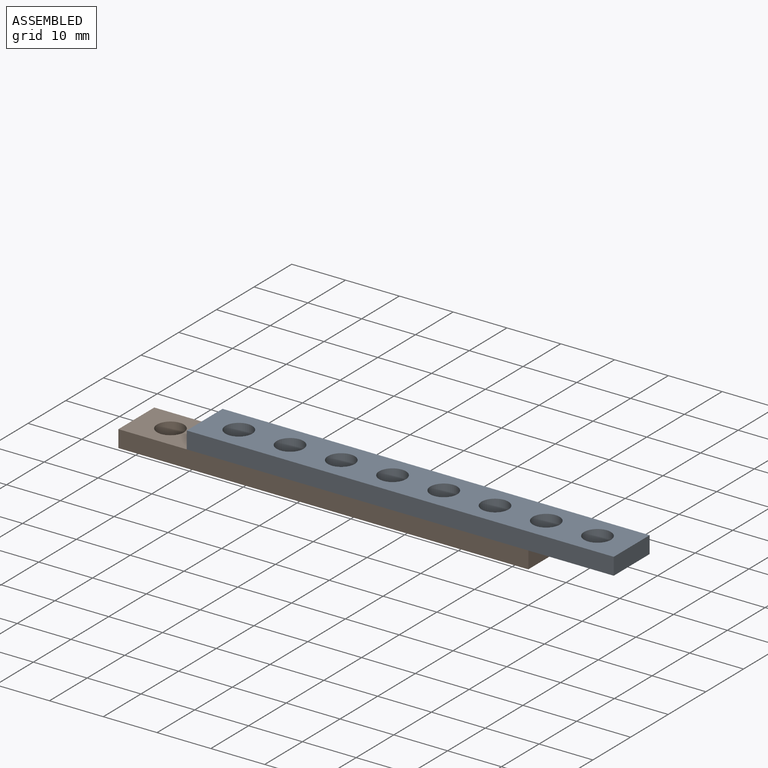
[diagram: assembled view]
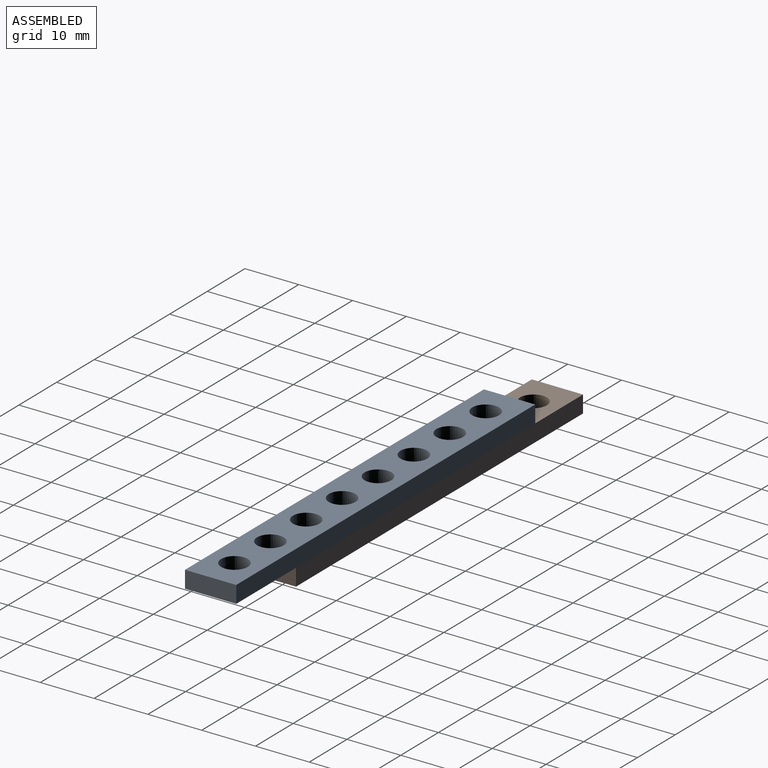
[diagram: assembled view, second angle]
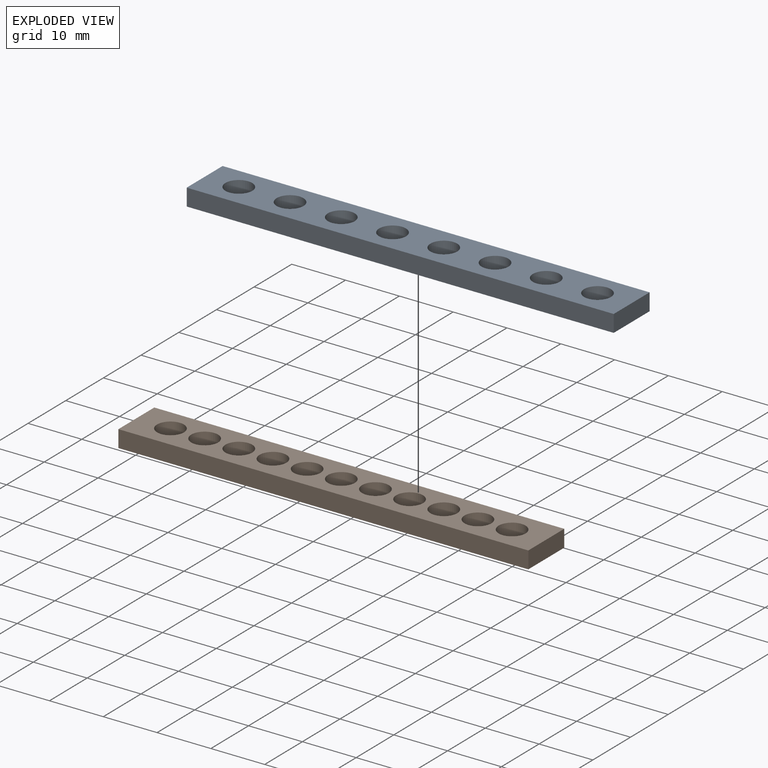
[diagram: exploded view]
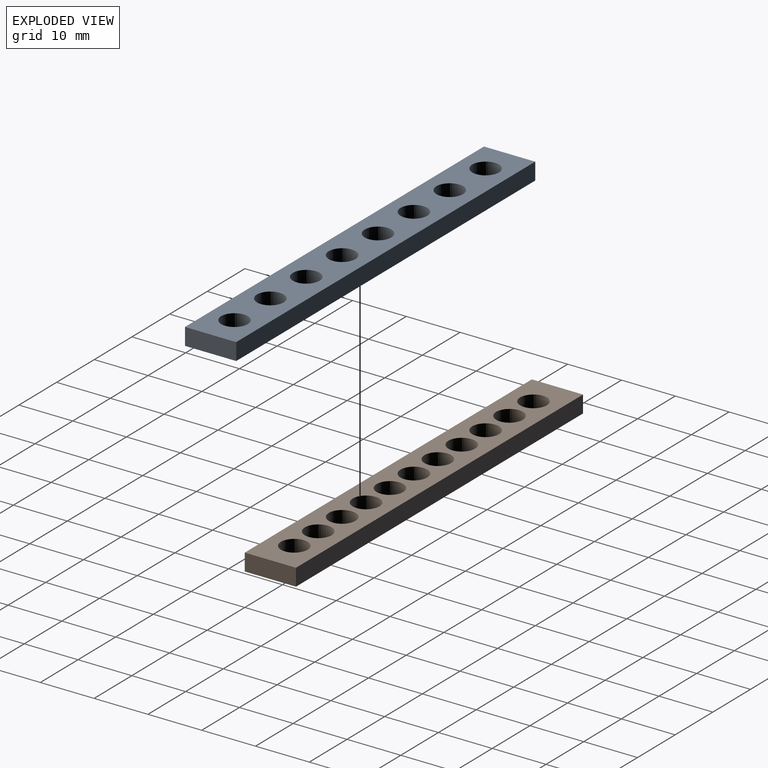
[diagram: exploded view, second angle]
ASSEMBLY  parts=2 mates=2
PART A: 14 faces, bbox 79.4x9.5x3.2 mm
  f0: plane 79.38x3.18mm, normal (0,-1,0), area 252mm2, adj f1,f11,f12,f13
  f1: plane 9.53x3.18mm, normal (1,0,0), area 30.2mm2, adj f0,f2,f12,f13
  f2: plane 79.38x3.18mm, normal (0,1,0), area 252mm2, adj f1,f11,f12,f13
  f3: cylinder r=2.49mm len=4.98mm, axis (0,0,-1), area 49.7mm2, adj f12,f13
  f4: cylinder r=2.49mm len=4.98mm, axis (0,0,-1), area 49.7mm2, adj f12,f13
  f5: cylinder r=2.49mm len=4.98mm, axis (0,0,-1), area 49.7mm2, adj f12,f13
  f6: cylinder r=2.49mm len=4.98mm, axis (0,0,-1), area 49.7mm2, adj f12,f13
  f7: cylinder r=2.49mm len=4.98mm, axis (0,0,-1), area 49.7mm2, adj f12,f13
  f8: cylinder r=2.49mm len=4.98mm, axis (0,0,-1), area 49.7mm2, adj f12,f13
  f9: cylinder r=2.49mm len=4.98mm, axis (0,0,-1), area 49.7mm2, adj f12,f13
  f10: cylinder r=2.49mm len=4.98mm, axis (0,0,-1), area 49.7mm2, adj f12,f13
  f11: plane 9.53x3.18mm, normal (-1,0,0), area 30.2mm2, adj f0,f2,f12,f13
  f12: plane 79.38x9.53mm, normal (0,0,1), area 600.3mm2, adj f0,f1,f2,f3,f4,f5,f6,f7
  f13: plane 79.38x9.53mm, normal (0,0,-1), area 600.3mm2, adj f0,f1,f2,f3,f4,f5,f6,f7
PART B: 17 faces, bbox 76.2x9.5x3.2 mm
  f0: plane 76.2x3.18mm, normal (0,-1,0), area 241.9mm2, adj f1,f14,f15,f16
  f1: plane 9.53x3.18mm, normal (1,0,0), area 30.2mm2, adj f0,f2,f15,f16
  f2: plane 76.2x3.18mm, normal (0,1,0), area 241.9mm2, adj f1,f14,f15,f16
  f3: cylinder r=2.49mm len=4.98mm, axis (0,0,-1), area 49.7mm2, adj f15,f16
  f4: cylinder r=2.49mm len=4.98mm, axis (0,0,-1), area 49.7mm2, adj f15,f16
  f5: cylinder r=2.49mm len=4.98mm, axis (0,0,-1), area 49.7mm2, adj f15,f16
  f6: cylinder r=2.49mm len=4.98mm, axis (0,0,-1), area 49.7mm2, adj f15,f16
  f7: cylinder r=2.49mm len=4.98mm, axis (0,0,-1), area 49.7mm2, adj f15,f16
  f8: cylinder r=2.49mm len=4.98mm, axis (0,0,-1), area 49.7mm2, adj f15,f16
  f9: cylinder r=2.49mm len=4.98mm, axis (0,0,-1), area 49.7mm2, adj f15,f16
  f10: cylinder r=2.49mm len=4.98mm, axis (0,0,-1), area 49.7mm2, adj f15,f16
  f11: cylinder r=2.49mm len=4.98mm, axis (0,0,-1), area 49.7mm2, adj f15,f16
  f12: cylinder r=2.49mm len=4.98mm, axis (0,0,-1), area 49.7mm2, adj f15,f16
  f13: cylinder r=2.49mm len=4.98mm, axis (0,0,-1), area 49.7mm2, adj f15,f16
  f14: plane 9.53x3.18mm, normal (-1,0,0), area 30.2mm2, adj f0,f2,f15,f16
  f15: plane 76.2x9.53mm, normal (0,0,1), area 511.7mm2, adj f0,f1,f2,f3,f4,f5,f6,f7
  f16: plane 76.2x9.53mm, normal (0,0,-1), area 511.7mm2, adj f0,f1,f2,f3,f4,f5,f6,f7
PLACE A t=(-6.35,-24.38,3.17)mm
PLACE B at identity
MATE revolute A.f3 <-> B.f5  axis (0,0,-1) through (-57.15,4.76,3.18)mm
MATE cylindrical A.f7 <-> B.f11  axis (0,0,-1) through (-19.05,4.76,4.76)mm
